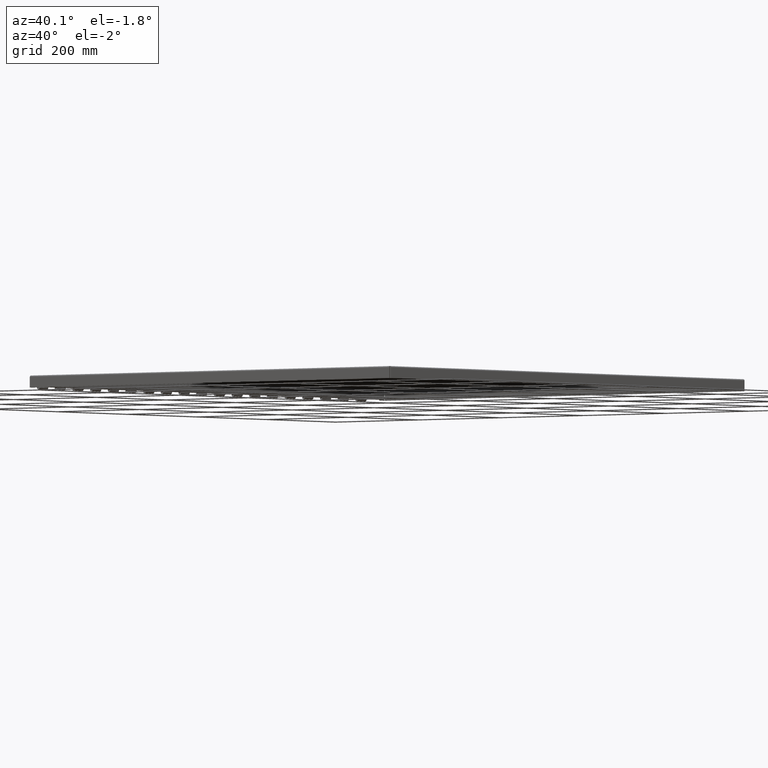
[diagram: clean part render]
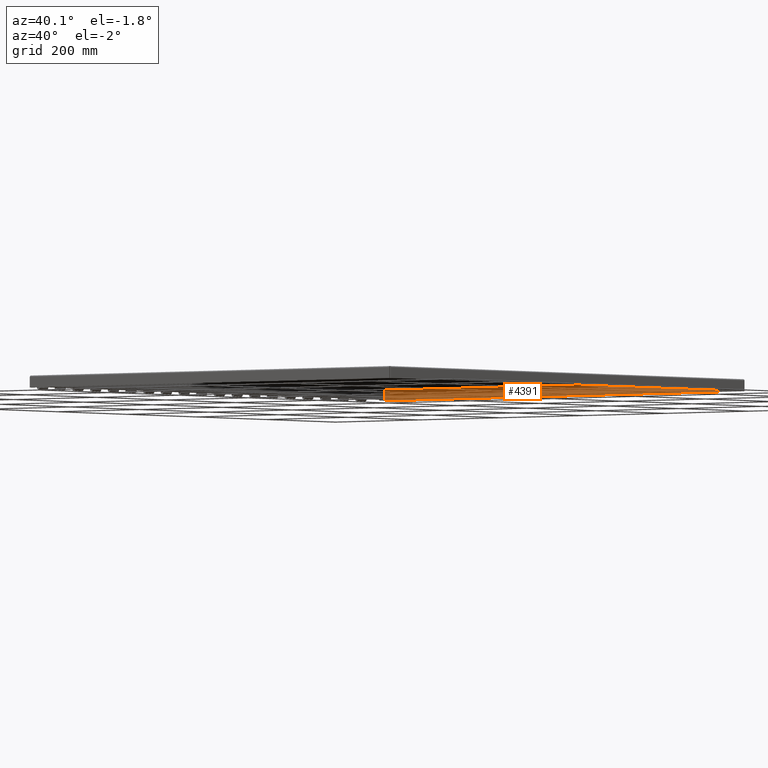
[diagram: same view with one face highlighted and labeled with its STEP entity id]
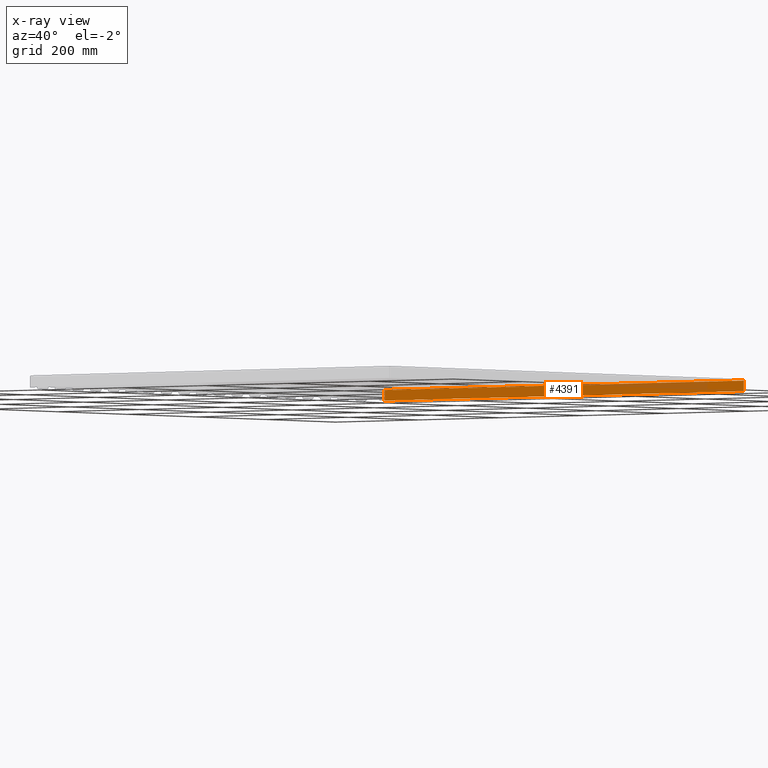
[diagram: x-ray of the same camera — body ghosted, the highlighted face saturated]
A machine part, auxiliary view. The second image highlights one B-rep face of the part: STEP entity #4391.
The next image is the same camera in x-ray: the body ghosted, the highlighted face saturated — about 14% of this face is hidden behind the body in this view.
In plain terms, the highlighted planar face has unit normal (-0, -1, -0).
Its self-contained STEP definition (entity closure, byte-faithful):
#410=PLANE('',#4710);
#571=FACE_OUTER_BOUND('',#800,.T.);
#800=EDGE_LOOP('',(#3263,#3264,#3265,#3266));
#1033=LINE('',#6371,#1489);
#1046=LINE('',#6595,#1502);
#1058=LINE('',#6742,#1514);
#1059=LINE('',#6744,#1515);
#1489=VECTOR('',#5170,0.393700787401575);
#1502=VECTOR('',#5191,0.393700787401575);
#1514=VECTOR('',#5213,0.393700787401575);
#1515=VECTOR('',#5216,0.393700787401575);
#2102=VERTEX_POINT('',#6364);
#2103=VERTEX_POINT('',#6370);
#2118=VERTEX_POINT('',#6593);
#2129=VERTEX_POINT('',#6740);
#2530=EDGE_CURVE('',#2103,#2102,#1033,.T.);
#2556=EDGE_CURVE('',#2118,#2102,#1046,.T.);
#2576=EDGE_CURVE('',#2118,#2129,#1058,.T.);
#2577=EDGE_CURVE('',#2103,#2129,#1059,.T.);
#3263=ORIENTED_EDGE('',*,*,#2556,.F.);
#3264=ORIENTED_EDGE('',*,*,#2576,.T.);
#3265=ORIENTED_EDGE('',*,*,#2577,.F.);
#3266=ORIENTED_EDGE('',*,*,#2530,.T.);
#4391=ADVANCED_FACE('',(#571),#410,.T.);
#4710=AXIS2_PLACEMENT_3D('',#6743,#5214,#5215);
#5170=DIRECTION('',(-1.,-3.59344958643161E-17,2.44961086387706E-31));
#5191=DIRECTION('',(3.63418297565728E-15,3.93848124079128E-15,-1.));
#5213=DIRECTION('',(1.,8.13792682330823E-17,-2.0184304546227E-19));
#5214=DIRECTION('center_axis',(-3.59344958643161E-17,1.,3.93848124079128E-15));
#5215=DIRECTION('ref_axis',(1.,3.59344958643158E-17,8.13792682330821E-17));
#5216=DIRECTION('',(4.43734259186819E-31,-5.39030285815812E-15,1.));
#6364=CARTESIAN_POINT('',(-17.102451456544,-20.01975,0.105250000000004));
#6370=CARTESIAN_POINT('',(17.102451456544,-20.01975,0.105250000000001));
#6371=CARTESIAN_POINT('',(-0.0496777232855196,-20.01975,0.105250000000001));
#6593=CARTESIAN_POINT('',(-17.102451456544,-20.01975,0.874999999999999));
#6595=CARTESIAN_POINT('',(-17.102451456544,-20.01975,0.47354610839131));
#6740=CARTESIAN_POINT('',(17.102451456544,-20.01975,0.874999999999999));
#6742=CARTESIAN_POINT('',(-17.1875,-20.01975,0.874999999999999));
#6743=CARTESIAN_POINT('Origin',(-0.0467304465710415,-20.01975,0.456967216782682));
#6744=CARTESIAN_POINT('',(17.102451456544,-20.01975,0.105249999999998));